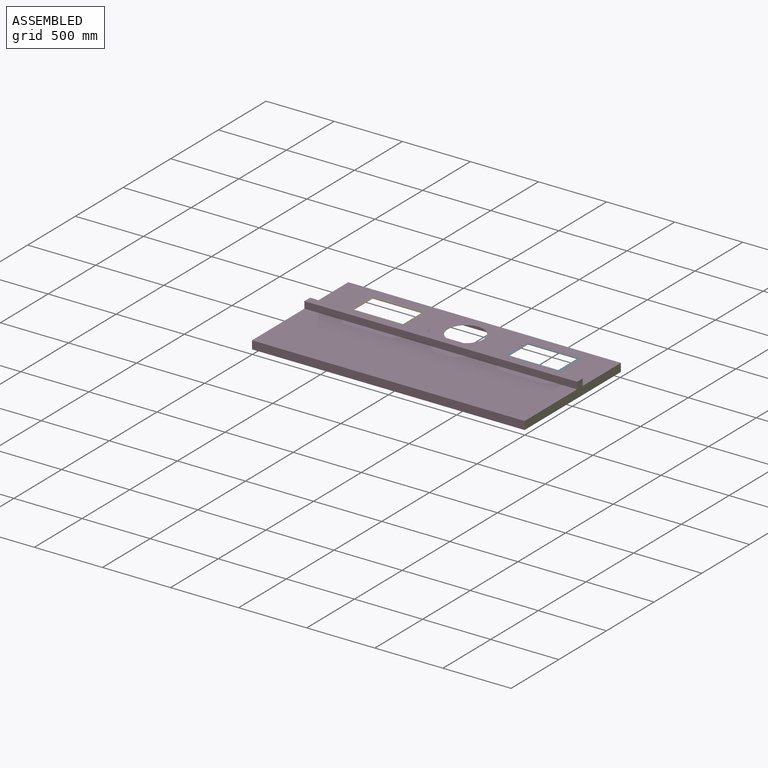
[diagram: assembled view]
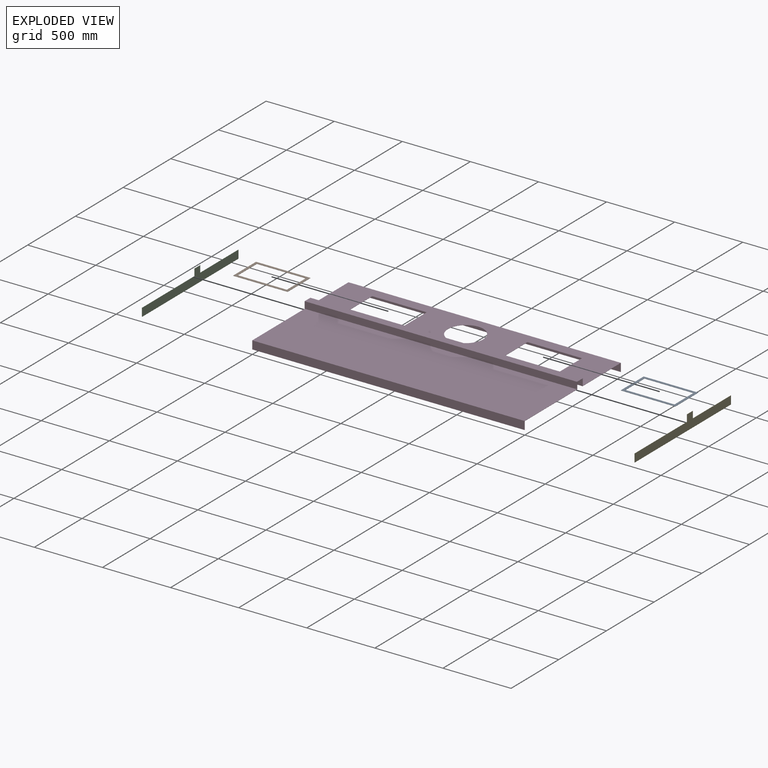
[diagram: exploded view]
GUIDED TOUR — MATED ASSEMBLY (Onshape document 011c91ee5ba243abde3b1198, AutoMate assembly 011c91ee5ba243abde3b1198_7448fdee4536f1cec1a0484c_9163d099d00c2506e7492eb8_default)

This assembly has 5 components, labeled P0..P4 below (a component is one placed occurrence of a part; the same part can appear more than once), held together by 4 mates. A mate is a constraint between two components; its type names the relative motion it leaves free:
  FASTENED — locks the two components together rigidly (no relative motion).
Axis/direction vectors are unit vectors and 'through' points are millimeter coordinates, both in the assembly's world frame.

MATES
  1. FASTENED "Fastened 3": P3 <-> P4, direction (0.000, -1.000, 0.000) through (1000.00, 808.40, 60.00) mm
  2. FASTENED "Fastened 2": P3 <-> P2, direction (0.000, -1.000, 0.000) through (-1000.00, 808.40, 60.00) mm
  3. FASTENED "Fastened 6": P1 <-> P3, direction (-1.000, 0.000, 0.000) through (-570.00, 688.40, 60.00) mm
  4. FASTENED "Fastened 5": P0 <-> P3, direction (-1.000, 0.000, 0.000) through (570.00, 688.40, 60.00) mm

ASSEMBLY ORDER
  1. P3 — the base component [order verified]
  2. P1 [order verified]
  3. P0 [order verified]
  4. P4 [order verified]
  5. P2 [order verified]
Order-tag legend:
  [order verified] — this step's position reverses a verified removal order: the component was checked to insert without passing through the ones already placed.

Of the 5 components, 5 carry the full construction recipe — the FeatureScript program that regenerates the part's solid from scratch; the rest are supplied as boundary geometry only.
Each toured component is shown spotlighted twice — in the assembled view, then in the exploded view, where a leader line traces a displaced component back to its assembled socket (saturated green if recipe-attached, orange if geometry-only; every other component desaturated gray) — followed by its recipe or geometry summary and the mates that hold it.
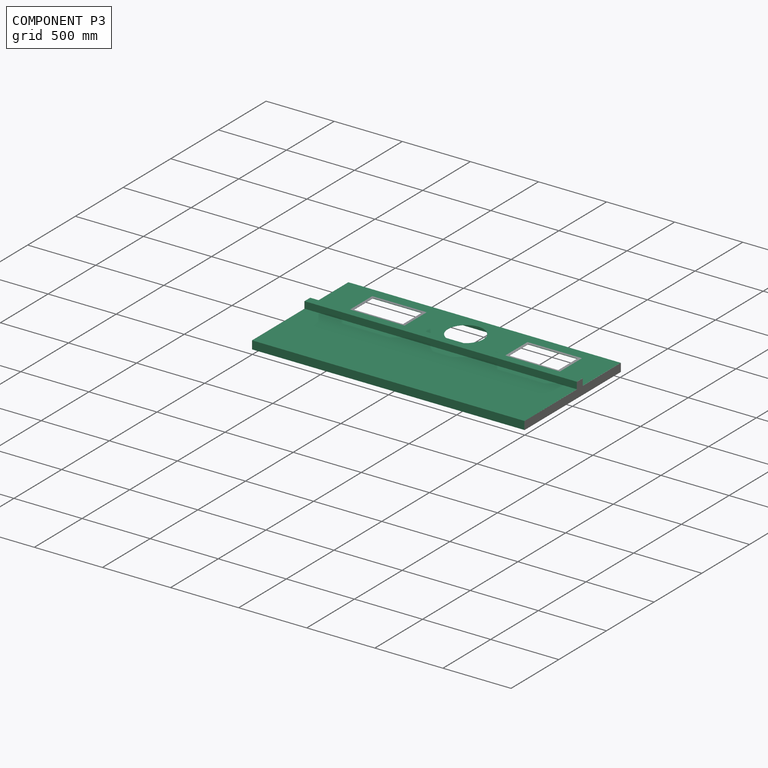
[diagram: component P3 — assembled]
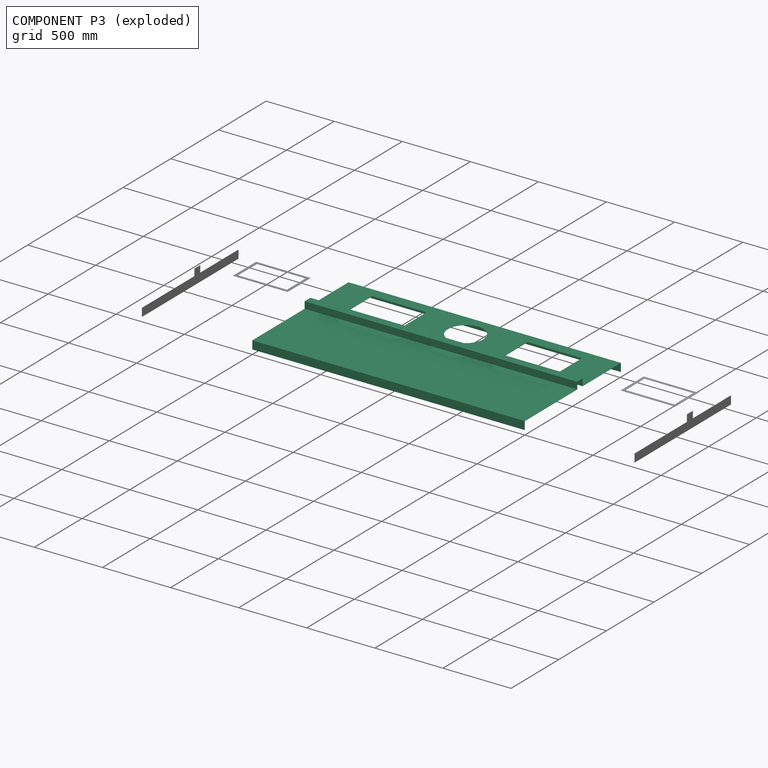
[diagram: component P3 — exploded]
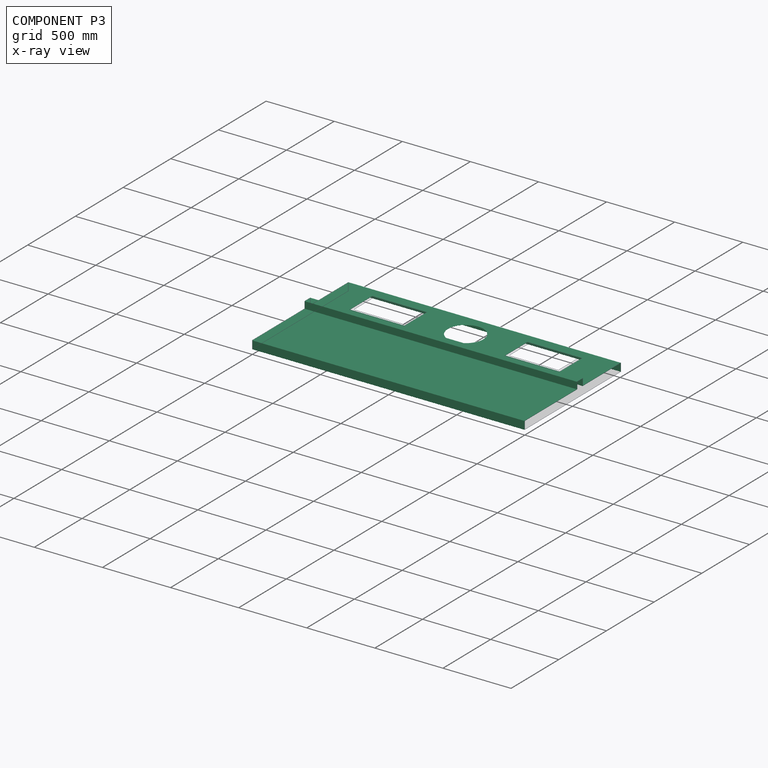
[diagram: component P3 — x-ray view]
COMPONENT P3 — recipe-attached (CADFS 00194764, mesh-verified: the recipe's output STEP matches this component's geometry to below the mesh-comparison resolution (tessellation chordal tolerance ~3.36 mm)).
Held by: FASTENED mate "Fastened 3" to P4; FASTENED mate "Fastened 2" to P2; FASTENED mate "Fastened 6" to P1; FASTENED mate "Fastened 5" to P0.
Construction recipe (FeatureScript — the CAD program that rebuilds this solid; sketch coordinates are in the units given by the * unit suffixes, e.g. mm):

FeatureScript 1511;
import(path : "onshape/std/geometry.fs", version : "1511.0");
import(path : "onshape/std/common.fs", version : "1511.0");
const mm = millimeter;
const VERTEX = EntityType.VERTEX;
const EDGE = EntityType.EDGE;
const FACE = EntityType.FACE;
const BODY = EntityType.BODY;
function v(x, y){return vector(x, y);}
function OD(order){return orderDisambiguation(order);}
function OSD(set){return originalSetDisambiguation(set);}
function TD(topology){return topologyDisambiguation(topology);}
function TDD(query){return trueDependencyDisambiguation(query);}
function sQuery(a, b, c) {return sketchEntityQuery(a, b, c);}

annotation { "Feature Type Name" : "Feature", "Feature Type Description" : "" }
export const myFeature = defineFeature(function(context is Context, id is Id, definition is map)
    precondition{}
    {
        {
            var Q0;
            Q0=qCreatedBy(makeId("Front.planeOp"),FACE);
            var sketch = newSketch(context, id + "F0", { "sketchPlane" : qUnion([Q0])});
            skLineSegment(sketch, "E0", {"start": v(0, 0) * mm, "end": v(0, 60) * mm});
            skLineSegment(sketch, "E1", {"start": v(0, 60) * mm, "end": v(400, 60) * mm});
            skLineSegment(sketch, "E2", {"start": v(400, 60) * mm, "end": v(400, 110) * mm});
            skLineSegment(sketch, "E3", {"start": v(400, 110) * mm, "end": v(460, 110) * mm});
            skLineSegment(sketch, "E4", {"start": v(460, 110) * mm, "end": v(460, 60) * mm});
            skLineSegment(sketch, "E5", {"start": v(460, 60) * mm, "end": v(1010, 60) * mm});
            skLineSegment(sketch, "E6", {"start": v(1010, 60) * mm, "end": v(1010, 0) * mm});
            skLineSegment(sketch, "E7", {"start": v(1010, 0) * mm, "end": v(0, 0) * mm});
            skSolve(sketch);
        }
        {
            var Q0;
            Q0 = qSketchRegion(id + "F0", true);
            extrude(context, id + "F1", {"entities" : qUnion([Q0]), "depth" : 2000 * mm});
        }
        {
            var Q0;
            Q0=makeQuery(id+"F1.opExtrude","SWEPT_FACE",FACE,{"disambiguationData":[OSD([sQuery(id+"F0.wireOp",EDGE,"E7")])]});
            var Q1;
            Q1=makeQuery(id+"F1.opExtrude","CAP_FACE",FACE,{"disambiguationData":[OSD([sQuery(id+"F0.wireOp",EDGE,"E0"),sQuery(id+"F0.wireOp",EDGE,"E1"),sQuery(id+"F0.wireOp",EDGE,"E2"),sQuery(id+"F0.wireOp",EDGE,"E3"),sQuery(id+"F0.wireOp",EDGE,"E4"),sQuery(id+"F0.wireOp",EDGE,"E5"),sQuery(id+"F0.wireOp",EDGE,"E6"),sQuery(id+"F0.wireOp",EDGE,"E7")])],"isStart":false});
            var Q2;
            Q2=makeQuery(id+"F1.opExtrude","CAP_FACE",FACE,{"disambiguationData":[OSD([sQuery(id+"F0.wireOp",EDGE,"E0"),sQuery(id+"F0.wireOp",EDGE,"E1"),sQuery(id+"F0.wireOp",EDGE,"E2"),sQuery(id+"F0.wireOp",EDGE,"E3"),sQuery(id+"F0.wireOp",EDGE,"E4"),sQuery(id+"F0.wireOp",EDGE,"E5"),sQuery(id+"F0.wireOp",EDGE,"E6"),sQuery(id+"F0.wireOp",EDGE,"E7")])],"isStart":true});
            shell(context, id + "F2", {"entities" : qUnion([Q0, Q1, Q2]), "thickness" : 1.6 * mm});
        }
        {
            var Q0;
            Q0=makeQuery(id+"F1.opExtrude","SWEPT_FACE",FACE,{"disambiguationData":[OSD([sQuery(id+"F0.wireOp",EDGE,"E1")])]});
            var sketch = newSketch(context, id + "F3", { "sketchPlane" : qUnion([Q0])});
            skCircle(sketch, "E8", {"center": v(200, -1000) * mm, "radius": 130 * mm});
            skPoint(sketch, "E8.centerSnap0", {"position": v(200, 0) * mm});
            skPoint(sketch, "E8.centerSnap1", {"position": v(0, -1000) * mm});
            skLineSegment(sketch, "E9.bottom", {"start": v(320, -630) * mm, "end": v(80, -630) * mm});
            skLineSegment(sketch, "E9.top", {"start": v(320, -230) * mm, "end": v(80, -230) * mm});
            skLineSegment(sketch, "E9.left", {"start": v(320, -630) * mm, "end": v(320, -230) * mm});
            skLineSegment(sketch, "E9.right", {"start": v(80, -630) * mm, "end": v(80, -230) * mm});
            skPoint(sketch, "E9.middle", {"position": v(200, -430) * mm});
            skLineSegment(sketch, "E10.bottom", {"start": v(320, -1770) * mm, "end": v(80, -1770) * mm});
            skLineSegment(sketch, "E10.top", {"start": v(320, -1370) * mm, "end": v(80, -1370) * mm});
            skLineSegment(sketch, "E10.left", {"start": v(320, -1770) * mm, "end": v(320, -1370) * mm});
            skLineSegment(sketch, "E10.right", {"start": v(80, -1770) * mm, "end": v(80, -1370) * mm});
            skPoint(sketch, "E10.middle", {"position": v(200, -1570) * mm});
            skSolve(sketch);
        }
        {
            var Q0;
            Q0 = qSketchRegion(id + "F3", true);
            extrude(context, id + "F4", {"entities" : qUnion([Q0]), "operationType" : NewBodyOperationType.REMOVE, "endBound" : BoundingType.THROUGH_ALL, "oppositeDirection" : true, "depth" : 25 * mm});
        }
    });
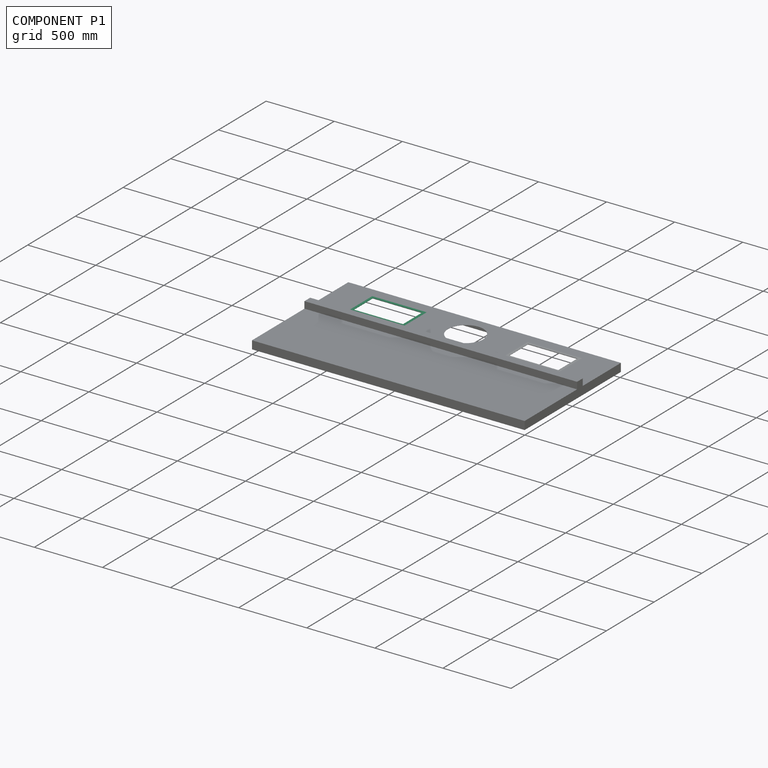
[diagram: component P1 — assembled]
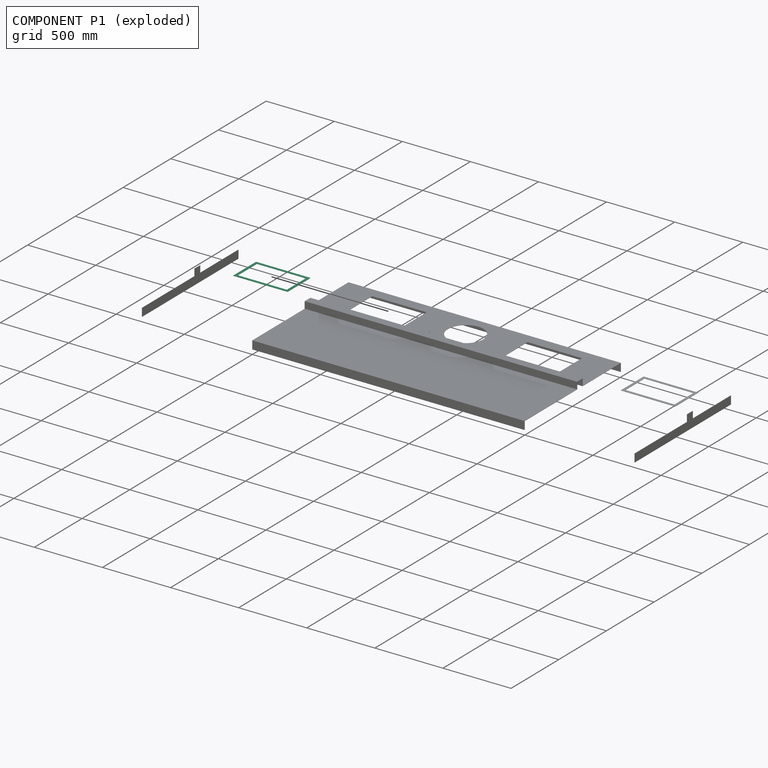
[diagram: component P1 — exploded]
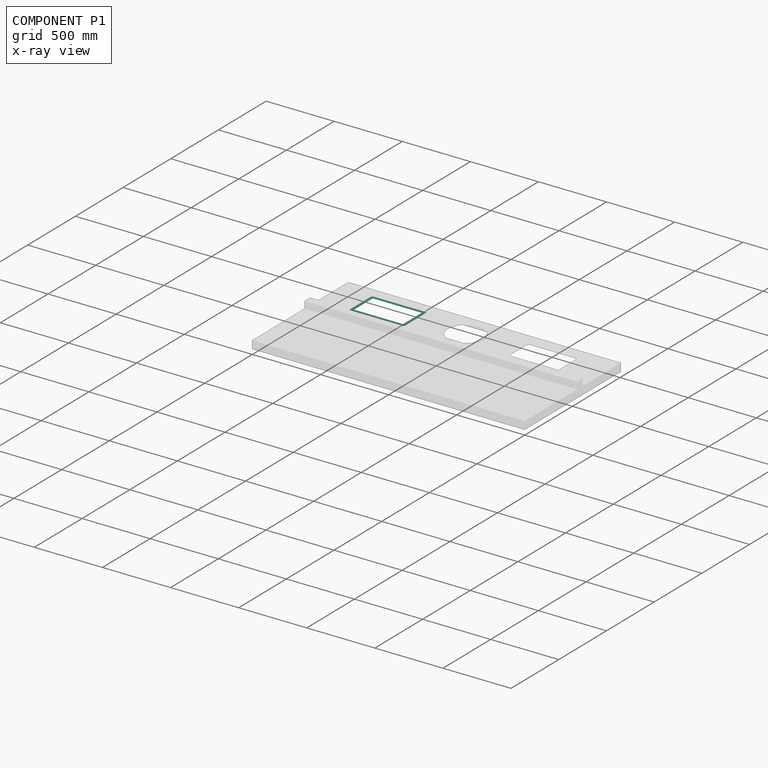
[diagram: component P1 — x-ray view]
COMPONENT P1 — same part as P0 (CADFS 00194762); its construction recipe is shown at P0.
Held by: FASTENED mate "Fastened 6" to P3.
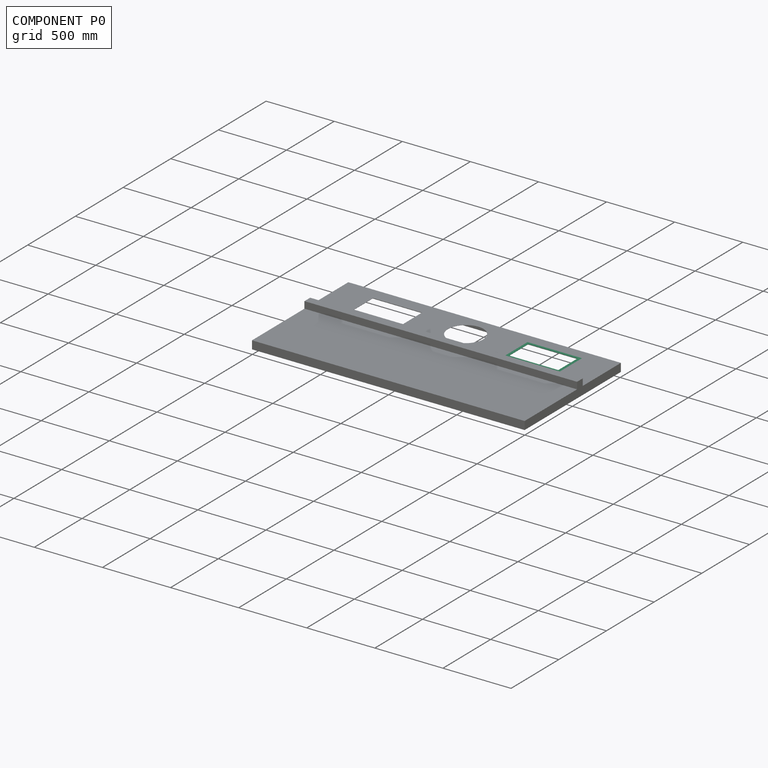
[diagram: component P0 — assembled]
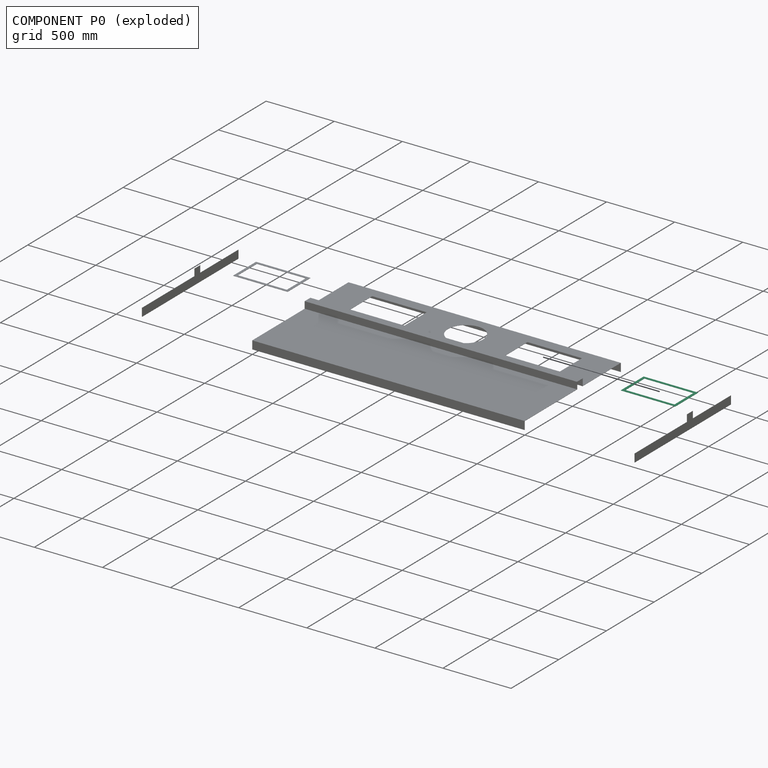
[diagram: component P0 — exploded]
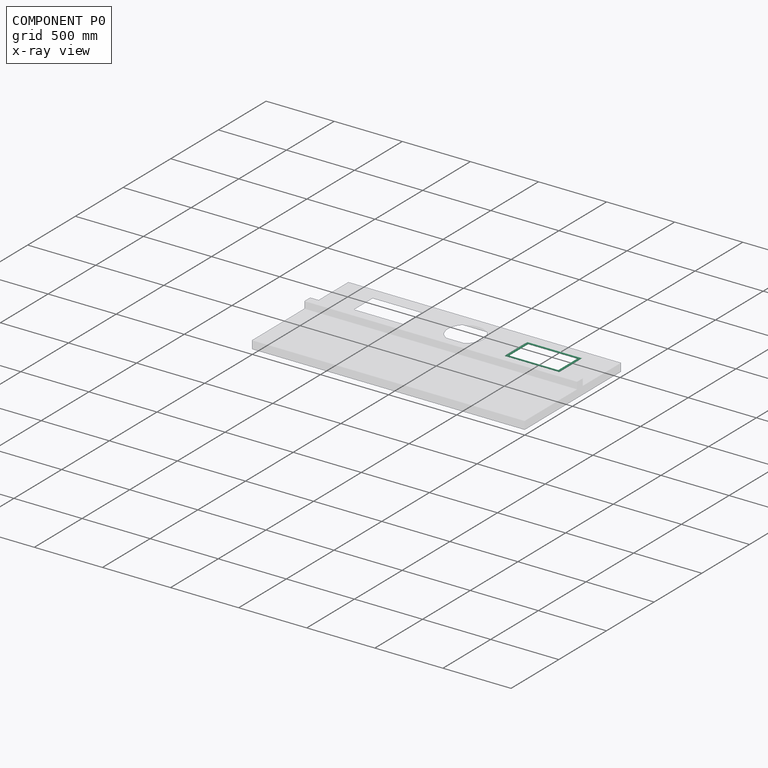
[diagram: component P0 — x-ray view]
COMPONENT P0 — recipe-attached (CADFS 00194762, mesh-verified: the recipe's output STEP matches this component's geometry to below the mesh-comparison resolution (tessellation chordal tolerance ~0.7 mm)).
Held by: FASTENED mate "Fastened 5" to P3.
Construction recipe (FeatureScript — the CAD program that rebuilds this solid; sketch coordinates are in the units given by the * unit suffixes, e.g. mm):

FeatureScript 1511;
import(path : "onshape/std/geometry.fs", version : "1511.0");
import(path : "onshape/std/common.fs", version : "1511.0");
const mm = millimeter;
const VERTEX = EntityType.VERTEX;
const EDGE = EntityType.EDGE;
const FACE = EntityType.FACE;
const BODY = EntityType.BODY;
function v(x, y){return vector(x, y);}
function OD(order){return orderDisambiguation(order);}
function OSD(set){return originalSetDisambiguation(set);}
function TD(topology){return topologyDisambiguation(topology);}
function TDD(query){return trueDependencyDisambiguation(query);}
function sQuery(a, b, c) {return sketchEntityQuery(a, b, c);}

annotation { "Feature Type Name" : "Feature", "Feature Type Description" : "" }
export const myFeature = defineFeature(function(context is Context, id is Id, definition is map)
    precondition{}
    {
        {
            var Q0;
            Q0=qCreatedBy(makeId("Top.planeOp"),FACE);
            var sketch = newSketch(context, id + "F0", { "sketchPlane" : qUnion([Q0])});
            skLineSegment(sketch, "E0.bottom", {"start": v(200, 120) * mm, "end": v(-200, 120) * mm});
            skLineSegment(sketch, "E0.top", {"start": v(200, -120) * mm, "end": v(-200, -120) * mm});
            skLineSegment(sketch, "E0.left", {"start": v(200, 120) * mm, "end": v(200, -120) * mm});
            skLineSegment(sketch, "E0.right", {"start": v(-200, 120) * mm, "end": v(-200, -120) * mm});
            skPoint(sketch, "E0.middle", {"position": v(0, 0) * mm});
            skLineSegment(sketch, "E1.bottom", {"start": v(180, 100) * mm, "end": v(-180, 100) * mm});
            skLineSegment(sketch, "E1.top", {"start": v(180, -100) * mm, "end": v(-180, -100) * mm});
            skLineSegment(sketch, "E1.left", {"start": v(180, 100) * mm, "end": v(180, -100) * mm});
            skLineSegment(sketch, "E1.right", {"start": v(-180, 100) * mm, "end": v(-180, -100) * mm});
            skSolve(sketch);
        }
        {
            var Q0;
            Q0 = qSketchRegion(id + "F0", true);
            extrude(context, id + "F1", {"entities" : qUnion([Q0]), "depth" : 1.6 * mm});
        }
    });
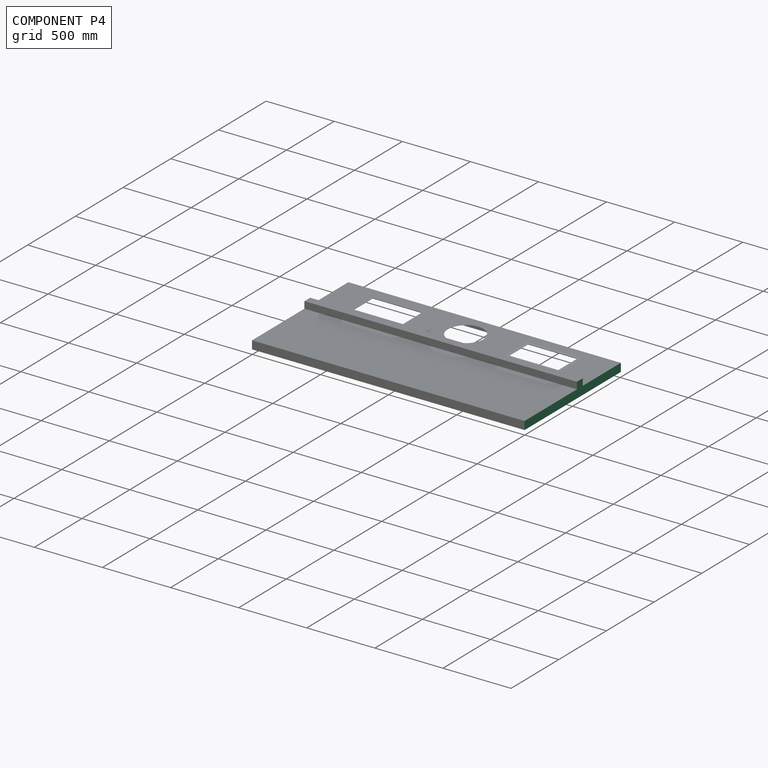
[diagram: component P4 — assembled]
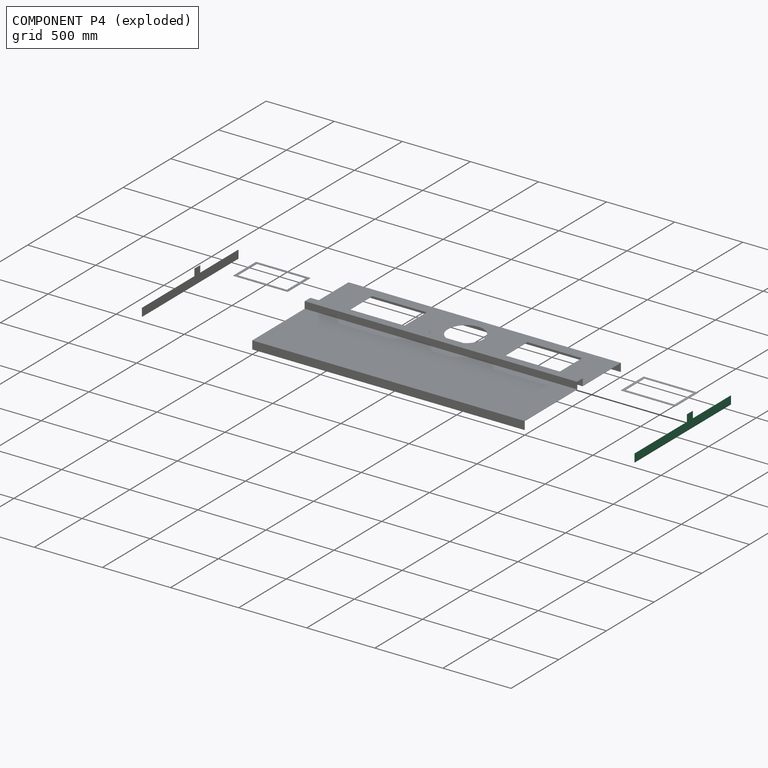
[diagram: component P4 — exploded]
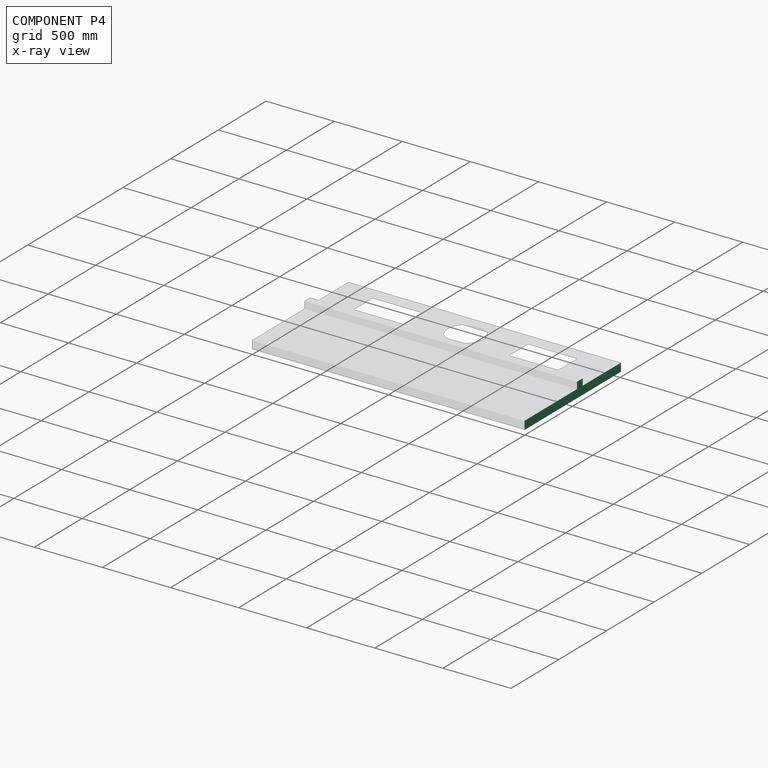
[diagram: component P4 — x-ray view]
COMPONENT P4 — same part as P2 (CADFS 00194766); its construction recipe is shown at P2.
Held by: FASTENED mate "Fastened 3" to P3.
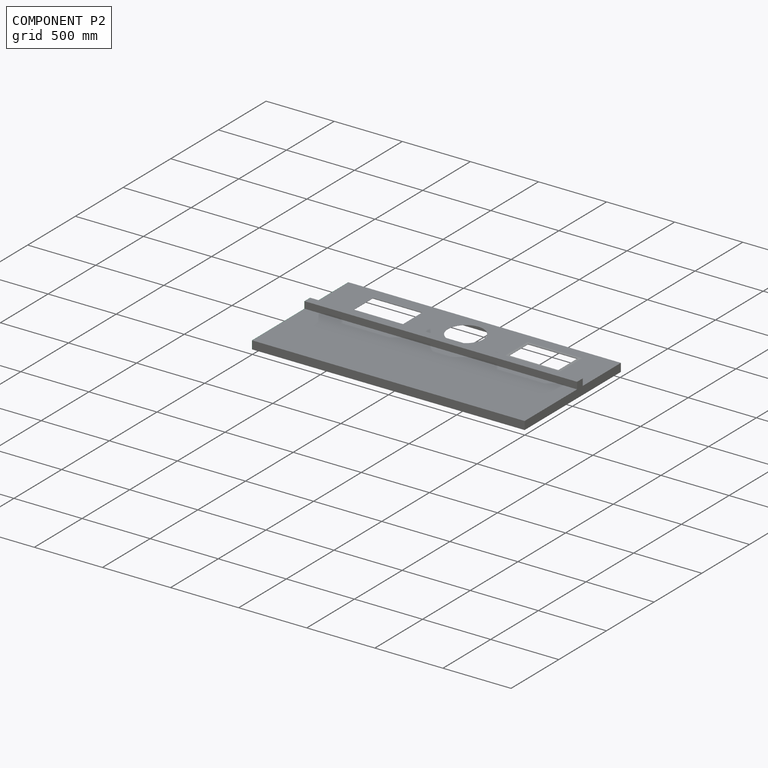
[diagram: component P2 — assembled]
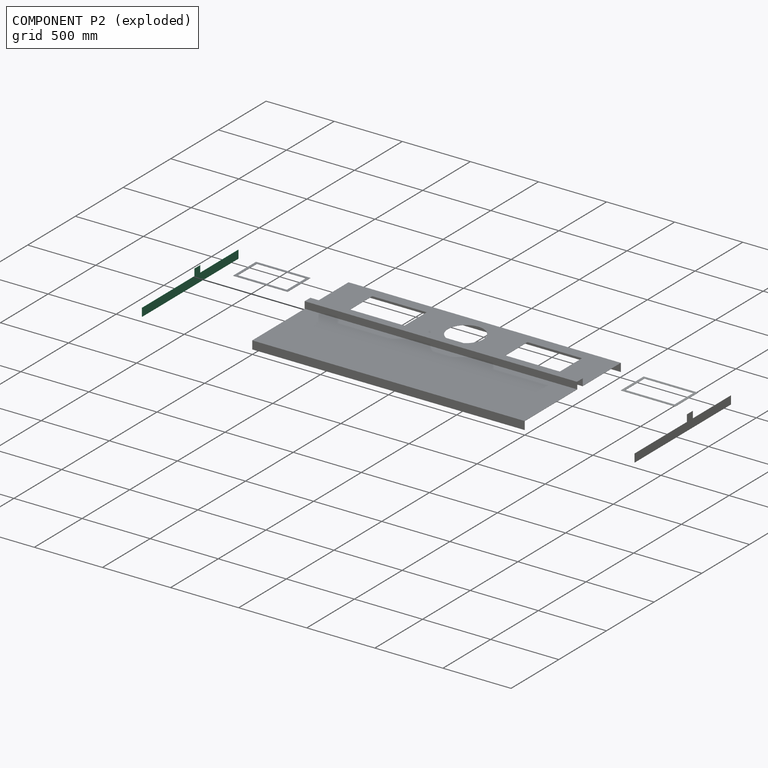
[diagram: component P2 — exploded]
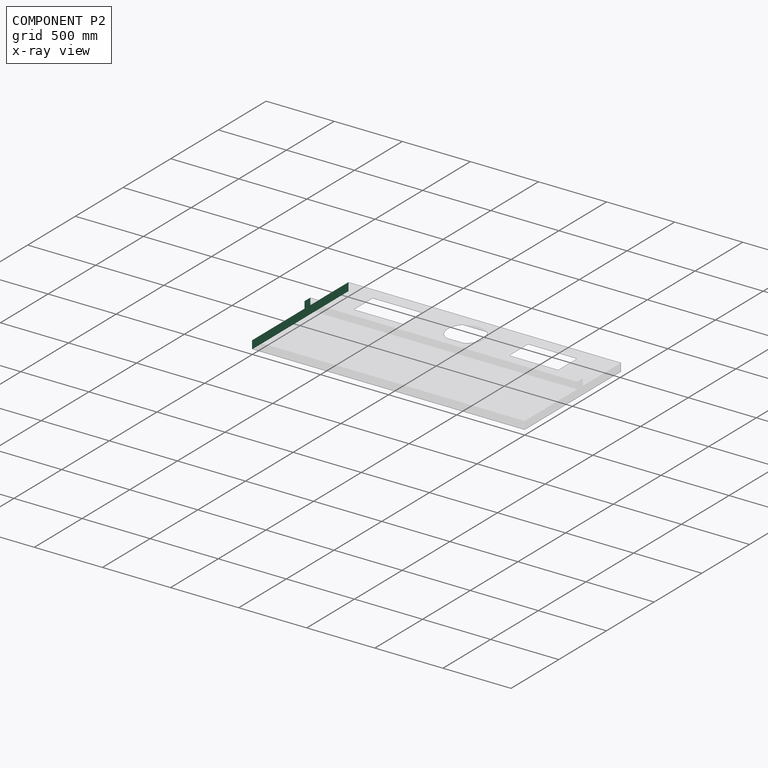
[diagram: component P2 — x-ray view]
COMPONENT P2 — recipe-attached (CADFS 00194766, mesh-verified: the recipe's output STEP matches this component's geometry to below the mesh-comparison resolution (tessellation chordal tolerance ~1.52 mm)).
Held by: FASTENED mate "Fastened 2" to P3.
Construction recipe (FeatureScript — the CAD program that rebuilds this solid; sketch coordinates are in the units given by the * unit suffixes, e.g. mm):

FeatureScript 1511;
import(path : "onshape/std/geometry.fs", version : "1511.0");
import(path : "onshape/std/common.fs", version : "1511.0");
const mm = millimeter;
const VERTEX = EntityType.VERTEX;
const EDGE = EntityType.EDGE;
const FACE = EntityType.FACE;
const BODY = EntityType.BODY;
function v(x, y){return vector(x, y);}
function OD(order){return orderDisambiguation(order);}
function OSD(set){return originalSetDisambiguation(set);}
function TD(topology){return topologyDisambiguation(topology);}
function TDD(query){return trueDependencyDisambiguation(query);}
function sQuery(a, b, c) {return sketchEntityQuery(a, b, c);}

annotation { "Feature Type Name" : "Feature", "Feature Type Description" : "" }
export const myFeature = defineFeature(function(context is Context, id is Id, definition is map)
    precondition{}
    {
        {
            var Q0;
            Q0=qCreatedBy(makeId("Front.planeOp"),FACE);
            var sketch = newSketch(context, id + "F0", { "sketchPlane" : qUnion([Q0])});
            skLineSegment(sketch, "E0", {"start": v(0, 0) * mm, "end": v(0, 60) * mm});
            skLineSegment(sketch, "E1", {"start": v(0, 60) * mm, "end": v(400, 60) * mm});
            skLineSegment(sketch, "E2", {"start": v(400, 60) * mm, "end": v(400, 110) * mm});
            skLineSegment(sketch, "E3", {"start": v(400, 110) * mm, "end": v(460, 110) * mm});
            skLineSegment(sketch, "E4", {"start": v(460, 110) * mm, "end": v(460, 60) * mm});
            skLineSegment(sketch, "E5", {"start": v(460, 60) * mm, "end": v(1010, 60) * mm});
            skLineSegment(sketch, "E6", {"start": v(1010, 60) * mm, "end": v(1010, 0) * mm});
            skLineSegment(sketch, "E7", {"start": v(1010, 0) * mm, "end": v(0, 0) * mm});
            skSolve(sketch);
        }
        {
            var Q0;
            Q0 = qSketchRegion(id + "F0", true);
            extrude(context, id + "F1", {"entities" : qUnion([Q0]), "depth" : 1.6 * mm});
        }
    });
PROVENANCE & LICENSES
Assembly (occurrences, transforms, mates, per-part STEP geometry): AutoMate dataset, Zenodo record 7776208, CC0.
Construction recipes: CADFS (HuggingFace VladPyatov/CADFS, CC-BY-4.0, layered over the ABC dataset), FeatureScript reconstruction programs keyed by ABC model id.
Join: ABC meta listings map ABC model id -> Onshape documentId; within a shared document, parts are matched by geometric signature (bounding-box dims + volume at 0.1% relative tolerance, exact B-rep face/solid counts).
Verification: 5 of this assembly's 5 components carry a recipe attachment, and every attachment is mesh-verified: the CADFS STEP and the AutoMate member STEP were compared as meshes in their shared local frame (symmetric sampled-point-to-mesh distance); worst across the 5 attachments: below the mesh-comparison resolution (tessellation chordal tolerance ~3.36 mm) on a 2243 mm part.
Renders: orthographic iso camera (az 35 / el 25); the floor grid conveys scale (grid pitch printed in each image; no ruler). In the exploded view each component is displaced by its stored offset vector: the offsets alone carry the explosion direction (mate normal/axis signs are not orientation cues and do not encode it), and separation distances are assigned per mate-chain, not proportionally to assembly-order depth.
